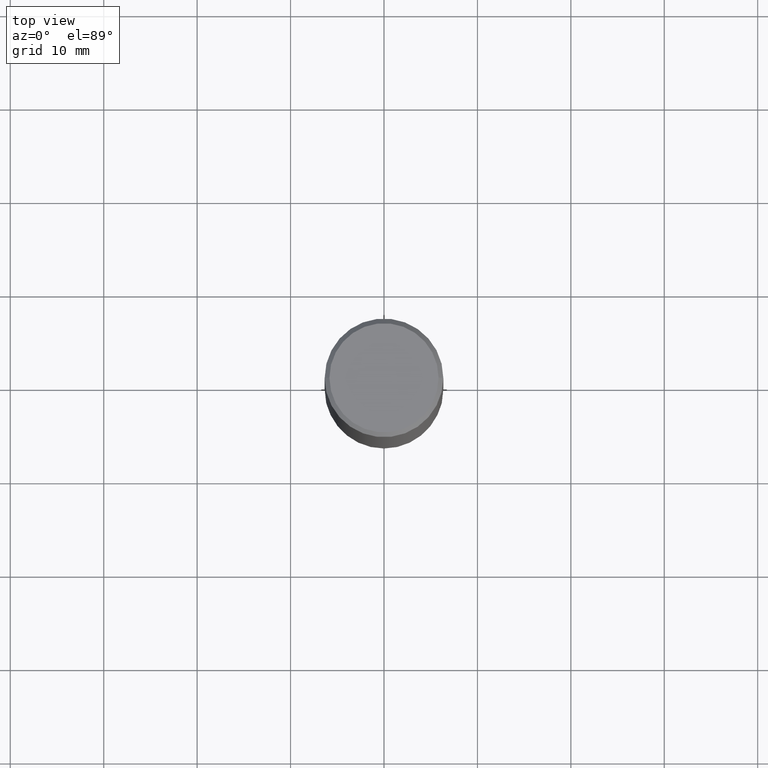
[diagram: clean part render]
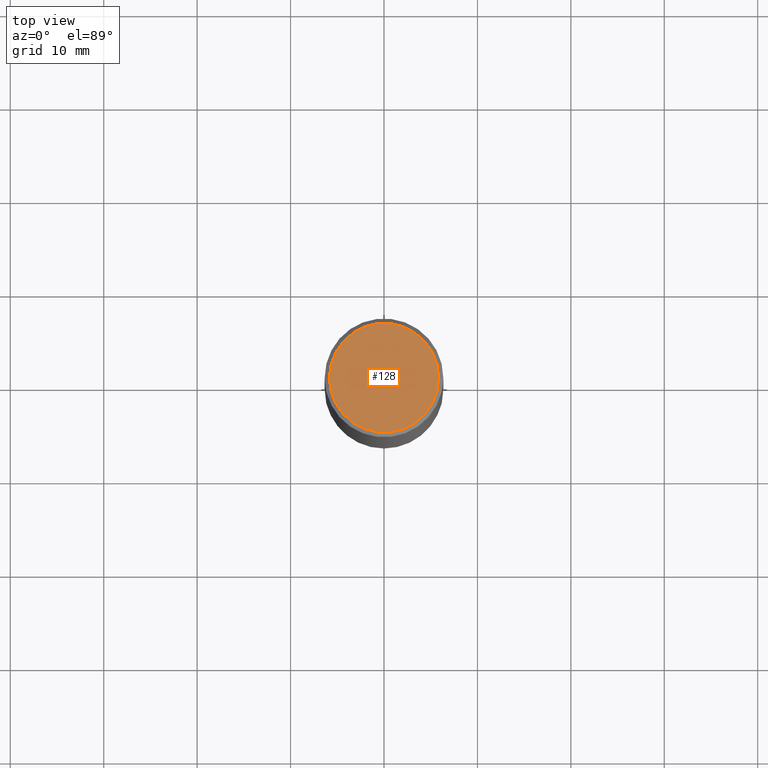
[diagram: same view with one face highlighted and labeled with its STEP entity id]
A machine part, top view. The second image highlights one B-rep face of the part: STEP entity #128.
In plain terms, the highlighted planar face has unit normal (0, -0, -1).
Its self-contained STEP definition (entity closure, byte-faithful):
#22 = DIRECTION ( 'NONE',  ( 1.000000000000000000, -6.982962677686267499E-15, 4.875813741439101456E-29 ) ) ;
#43 = CARTESIAN_POINT ( 'NONE',  ( -0.2299999999999999267, 1.640996229256272519E-15, 5.122214988119358314E-17 ) ) ;
#100 = PLANE ( 'NONE',  #281 ) ;
#118 = AXIS2_PLACEMENT_3D ( 'NONE', #148, #283, #215 ) ;
#128 = ADVANCED_FACE ( 'NONE', ( #361 ), #100, .F. ) ;
#134 = EDGE_LOOP ( 'NONE', ( #262, #171 ) ) ;
#144 = CARTESIAN_POINT ( 'NONE',  ( 0.2299999999999999267, -1.681434332853598617E-15, 5.122214988121642930E-17 ) ) ;
#148 = CARTESIAN_POINT ( 'NONE',  ( -1.252621697202263706E-45, 1.788411804456536750E-31, 5.122214988120493535E-17 ) ) ;
#157 = VERTEX_POINT ( 'NONE', #43 ) ;
#171 = ORIENTED_EDGE ( 'NONE', *, *, #284, .T. ) ;
#183 = CARTESIAN_POINT ( 'NONE',  ( -1.252621697202263706E-45, 1.788411804456536750E-31, 5.122214988120493535E-17 ) ) ;
#184 = CIRCLE ( 'NONE', #118, 0.2299999999999999267 ) ;
#197 = VERTEX_POINT ( 'NONE', #144 ) ;
#215 = DIRECTION ( 'NONE',  ( 1.000000000000000000, -6.982962677686267499E-15, 4.875813741439101456E-29 ) ) ;
#230 = AXIS2_PLACEMENT_3D ( 'NONE', #183, #318, #22 ) ;
#232 = CARTESIAN_POINT ( 'NONE',  ( 1.606081415867840870E-15, 0.2299999999999999267, -7.774296329933208332E-16 ) ) ;
#234 = DIRECTION ( 'NONE',  ( 2.438088387897960049E-29, -3.491481338843145188E-15, -1.000000000000000000 ) ) ;
#244 = CIRCLE ( 'NONE', #230, 0.2299999999999999267 ) ;
#262 = ORIENTED_EDGE ( 'NONE', *, *, #411, .T. ) ;
#281 = AXIS2_PLACEMENT_3D ( 'NONE', #232, #234, #311 ) ;
#283 = DIRECTION ( 'NONE',  ( -2.445468806185136597E-29, 3.491481338843145583E-15, 1.000000000000000000 ) ) ;
#284 = EDGE_CURVE ( 'NONE', #197, #157, #244, .T. ) ;
#311 = DIRECTION ( 'NONE',  ( -1.000000000000000000, 6.982962677686265922E-15, -4.876176775795935793E-29 ) ) ;
#318 = DIRECTION ( 'NONE',  ( -2.445468806185136597E-29, 3.491481338843145583E-15, 1.000000000000000000 ) ) ;
#361 = FACE_OUTER_BOUND ( 'NONE', #134, .T. ) ;
#411 = EDGE_CURVE ( 'NONE', #157, #197, #184, .T. ) ;